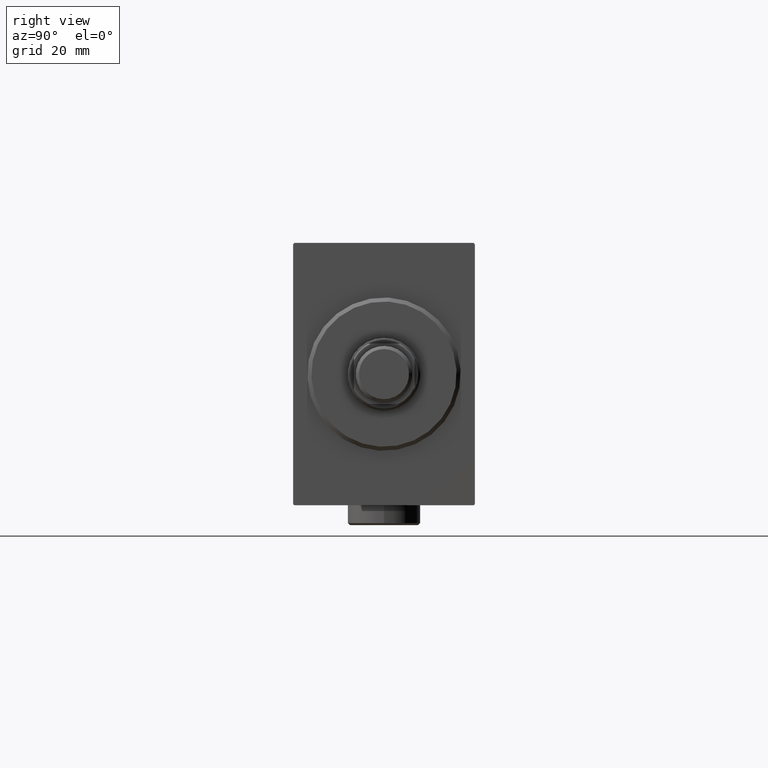
[diagram: clean part render]
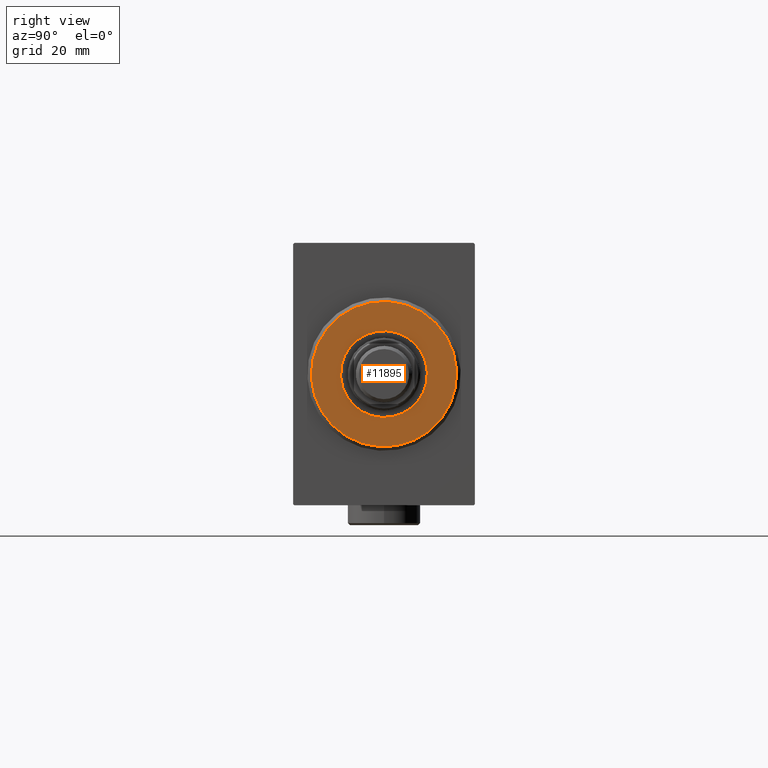
[diagram: same view with one face highlighted and labeled with its STEP entity id]
A machine part, right view. The second image highlights one B-rep face of the part: STEP entity #11895.
In plain terms, the highlighted planar face has unit normal (1, -0, -0).
Its self-contained STEP definition (entity closure, byte-faithful):
#194 = DIRECTION ( 'NONE',  ( 0.000000000000000000, 0.000000000000000000, -1.000000000000000000 ) ) ;
#2235 = EDGE_CURVE ( 'NONE', #18341, #28348, #18247, .T. ) ;
#3059 = DIRECTION ( 'NONE',  ( 0.000000000000000000, 0.000000000000000000, -1.000000000000000000 ) ) ;
#3715 = DIRECTION ( 'NONE',  ( 1.000000000000000000, -0.000000000000000000, 0.000000000000000000 ) ) ;
#4850 = EDGE_CURVE ( 'NONE', #40376, #7777, #9734, .T. ) ;
#6641 = CARTESIAN_POINT ( 'NONE',  ( 3.000000000000000000, 0.000000000000000000, 0.000000000000000000 ) ) ;
#7777 = VERTEX_POINT ( 'NONE', #8753 ) ;
#7782 = DIRECTION ( 'NONE',  ( 1.000000000000000000, -0.000000000000000000, 0.000000000000000000 ) ) ;
#8753 = CARTESIAN_POINT ( 'NONE',  ( 3.000000000000000000, 0.000000000000000000, 17.99999999999999645 ) ) ;
#9018 = AXIS2_PLACEMENT_3D ( 'NONE', #6641, #3715, #3059 ) ;
#9734 = CIRCLE ( 'NONE', #31956, 17.99999999999999645 ) ;
#11895 = ADVANCED_FACE ( 'NONE', ( #18088, #24846 ), #42124, .T. ) ;
#13000 = DIRECTION ( 'NONE',  ( 1.000000000000000000, -0.000000000000000000, 0.000000000000000000 ) ) ;
#14510 = DIRECTION ( 'NONE',  ( 0.000000000000000000, 0.000000000000000000, -1.000000000000000000 ) ) ;
#17020 = CARTESIAN_POINT ( 'NONE',  ( 3.000000000000000000, 0.000000000000000000, 0.000000000000000000 ) ) ;
#17861 = CARTESIAN_POINT ( 'NONE',  ( 3.000000000000000000, 0.000000000000000000, 0.000000000000000000 ) ) ;
#18088 = FACE_OUTER_BOUND ( 'NONE', #24604, .T. ) ;
#18247 = CIRCLE ( 'NONE', #29760, 10.75000000000000000 ) ;
#18341 = VERTEX_POINT ( 'NONE', #40075 ) ;
#19922 = CARTESIAN_POINT ( 'NONE',  ( 3.000000000000000000, 0.000000000000000000, 0.000000000000000000 ) ) ;
#23140 = EDGE_LOOP ( 'NONE', ( #23151, #42644 ) ) ;
#23151 = ORIENTED_EDGE ( 'NONE', *, *, #27146, .F. ) ;
#23191 = EDGE_CURVE ( 'NONE', #7777, #40376, #31211, .T. ) ;
#23743 = DIRECTION ( 'NONE',  ( 0.000000000000000000, 0.000000000000000000, -1.000000000000000000 ) ) ;
#24604 = EDGE_LOOP ( 'NONE', ( #38669, #31462 ) ) ;
#24846 = FACE_BOUND ( 'NONE', #23140, .T. ) ;
#24995 = AXIS2_PLACEMENT_3D ( 'NONE', #28441, #7782, #35619 ) ;
#27146 = EDGE_CURVE ( 'NONE', #28348, #18341, #27606, .T. ) ;
#27606 = CIRCLE ( 'NONE', #34788, 10.75000000000000000 ) ;
#28348 = VERTEX_POINT ( 'NONE', #40109 ) ;
#28441 = CARTESIAN_POINT ( 'NONE',  ( 3.000000000000000000, 0.000000000000000000, 0.000000000000000000 ) ) ;
#29760 = AXIS2_PLACEMENT_3D ( 'NONE', #17861, #31587, #14510 ) ;
#30716 = DIRECTION ( 'NONE',  ( 1.000000000000000000, 0.000000000000000000, 0.000000000000000000 ) ) ;
#31211 = CIRCLE ( 'NONE', #9018, 17.99999999999999645 ) ;
#31462 = ORIENTED_EDGE ( 'NONE', *, *, #4850, .T. ) ;
#31587 = DIRECTION ( 'NONE',  ( 1.000000000000000000, 0.000000000000000000, 0.000000000000000000 ) ) ;
#31956 = AXIS2_PLACEMENT_3D ( 'NONE', #17020, #13000, #194 ) ;
#34788 = AXIS2_PLACEMENT_3D ( 'NONE', #19922, #30716, #23743 ) ;
#35619 = DIRECTION ( 'NONE',  ( 0.000000000000000000, 0.000000000000000000, -1.000000000000000000 ) ) ;
#36738 = CARTESIAN_POINT ( 'NONE',  ( 3.000000000000000000, 2.265596578422603002E-15, -17.99999999999999645 ) ) ;
#38669 = ORIENTED_EDGE ( 'NONE', *, *, #23191, .T. ) ;
#40075 = CARTESIAN_POINT ( 'NONE',  ( 3.000000000000000000, 1.316495309083404618E-15, 10.75000000000000000 ) ) ;
#40109 = CARTESIAN_POINT ( 'NONE',  ( 3.000000000000000000, 0.000000000000000000, -10.75000000000000000 ) ) ;
#40376 = VERTEX_POINT ( 'NONE', #36738 ) ;
#42124 = PLANE ( 'NONE',  #24995 ) ;
#42644 = ORIENTED_EDGE ( 'NONE', *, *, #2235, .F. ) ;